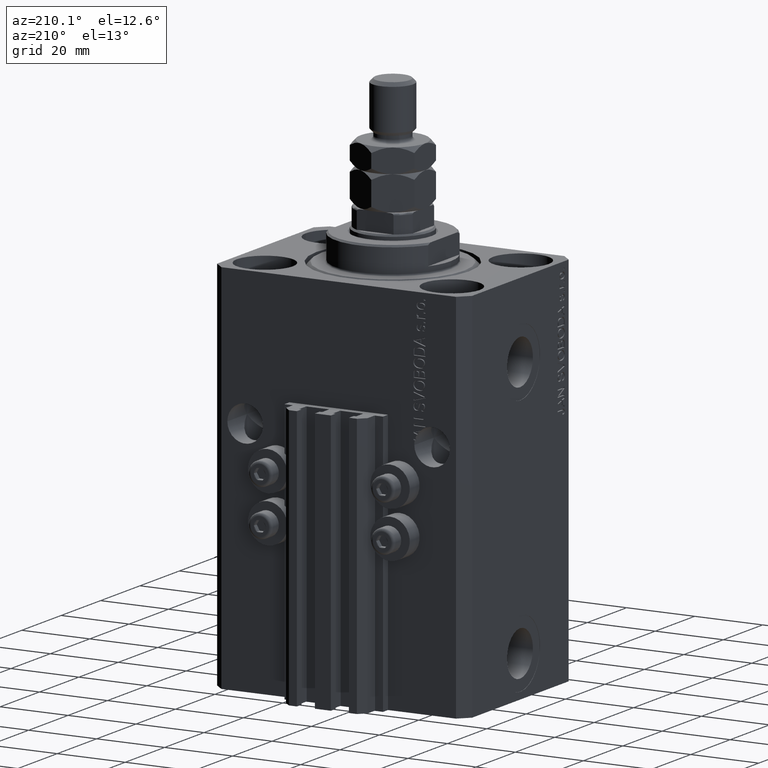
[diagram: clean part render]
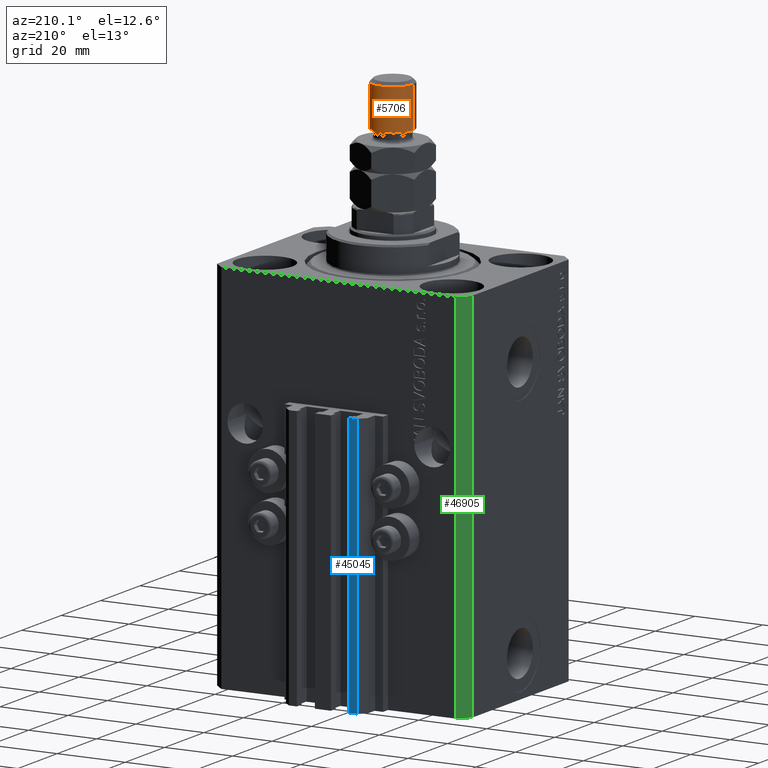
[diagram: same view with three faces highlighted in distinct colors, each labeled with its STEP entity id]
A machine part, auxiliary view with three faces highlighted in distinct colors.
Their STEP definitions:

[orange] entity #5706 — the highlighted cylindrical surface (edge-blend (fillet) strip) has radius 6 mm, axis along (-0, -0, -1).
#2334 = EDGE_CURVE ( 'NONE', #10616, #20076, #2963, .T. ) ;
#2963 = CIRCLE ( 'NONE', #47497, 6.000000000000000888 ) ;
#3292 = EDGE_CURVE ( 'NONE', #20076, #30026, #20012, .T. ) ;
#4273 = DIRECTION ( 'NONE',  ( -0.000000000000000000, -0.000000000000000000, -1.000000000000000000 ) ) ;
#5706 = ADVANCED_FACE ( 'NONE', ( #10175 ), #13105, .T. ) ;
#6201 = AXIS2_PLACEMENT_3D ( 'NONE', #46379, #20696, #16764 ) ;
#8218 = VECTOR ( 'NONE', #4273, 1000.000000000000000 ) ;
#10175 = FACE_OUTER_BOUND ( 'NONE', #16230, .T. ) ;
#10616 = VERTEX_POINT ( 'NONE', #44525 ) ;
#12099 = CARTESIAN_POINT ( 'NONE',  ( -6.000000000000000888, 0.000000000000000000, 33.00000000000000000 ) ) ;
#13105 = CYLINDRICAL_SURFACE ( 'NONE', #6201, 6.000000000000000888 ) ;
#13154 = VECTOR ( 'NONE', #31252, 1000.000000000000000 ) ;
#16230 = EDGE_LOOP ( 'NONE', ( #38208, #41145, #33505, #39753 ) ) ;
#16764 = DIRECTION ( 'NONE',  ( -1.000000000000000000, 0.000000000000000000, 0.000000000000000000 ) ) ;
#17545 = AXIS2_PLACEMENT_3D ( 'NONE', #34773, #45555, #38915 ) ;
#18337 = CIRCLE ( 'NONE', #17545, 6.000000000000000888 ) ;
#20012 = LINE ( 'NONE', #23667, #13154 ) ;
#20076 = VERTEX_POINT ( 'NONE', #23180 ) ;
#20133 = VERTEX_POINT ( 'NONE', #21933 ) ;
#20696 = DIRECTION ( 'NONE',  ( -0.000000000000000000, -0.000000000000000000, -1.000000000000000000 ) ) ;
#21933 = CARTESIAN_POINT ( 'NONE',  ( -6.000000000000000888, 0.000000000000000000, 20.00000000000000711 ) ) ;
#23180 = CARTESIAN_POINT ( 'NONE',  ( 6.000000000000000888, 7.347880794884120722E-16, 32.00000000000000000 ) ) ;
#23667 = CARTESIAN_POINT ( 'NONE',  ( 6.000000000000000888, 7.347880794884120722E-16, 33.00000000000000000 ) ) ;
#26747 = EDGE_CURVE ( 'NONE', #30026, #20133, #18337, .T. ) ;
#27008 = LINE ( 'NONE', #12099, #8218 ) ;
#27557 = EDGE_CURVE ( 'NONE', #10616, #20133, #27008, .T. ) ;
#28850 = DIRECTION ( 'NONE',  ( 1.000000000000000000, 0.000000000000000000, 0.000000000000000000 ) ) ;
#30026 = VERTEX_POINT ( 'NONE', #31700 ) ;
#31252 = DIRECTION ( 'NONE',  ( -0.000000000000000000, -0.000000000000000000, -1.000000000000000000 ) ) ;
#31700 = CARTESIAN_POINT ( 'NONE',  ( 6.000000000000000888, 7.347880794884120722E-16, 20.00000000000000711 ) ) ;
#33505 = ORIENTED_EDGE ( 'NONE', *, *, #26747, .T. ) ;
#34773 = CARTESIAN_POINT ( 'NONE',  ( 0.000000000000000000, 0.000000000000000000, 20.00000000000000711 ) ) ;
#38208 = ORIENTED_EDGE ( 'NONE', *, *, #2334, .T. ) ;
#38915 = DIRECTION ( 'NONE',  ( 1.000000000000000000, 0.000000000000000000, 0.000000000000000000 ) ) ;
#39753 = ORIENTED_EDGE ( 'NONE', *, *, #27557, .F. ) ;
#41145 = ORIENTED_EDGE ( 'NONE', *, *, #3292, .T. ) ;
#43278 = CARTESIAN_POINT ( 'NONE',  ( 0.000000000000000000, 0.000000000000000000, 32.00000000000000000 ) ) ;
#43776 = DIRECTION ( 'NONE',  ( 0.000000000000000000, 0.000000000000000000, -1.000000000000000000 ) ) ;
#44525 = CARTESIAN_POINT ( 'NONE',  ( -6.000000000000000888, 0.000000000000000000, 32.00000000000000000 ) ) ;
#45555 = DIRECTION ( 'NONE',  ( -0.000000000000000000, -0.000000000000000000, 1.000000000000000000 ) ) ;
#46379 = CARTESIAN_POINT ( 'NONE',  ( 0.000000000000000000, 0.000000000000000000, 33.00000000000000000 ) ) ;
#47497 = AXIS2_PLACEMENT_3D ( 'NONE', #43278, #43776, #28850 ) ;

[blue] entity #45045 — the highlighted planar face has unit normal (0, 1, 0).
#2706 = ORIENTED_EDGE ( 'NONE', *, *, #21176, .T. ) ;
#4107 = DIRECTION ( 'NONE',  ( 0.000000000000000000, 0.000000000000000000, 1.000000000000000000 ) ) ;
#4294 = CARTESIAN_POINT ( 'NONE',  ( -10.00000000000000000, 35.50000000000000000, -110.0000000000000000 ) ) ;
#4727 = VECTOR ( 'NONE', #28028, 1000.000000000000000 ) ;
#6081 = DIRECTION ( 'NONE',  ( -1.000000000000000000, 0.000000000000000000, 0.000000000000000000 ) ) ;
#6573 = CARTESIAN_POINT ( 'NONE',  ( -7.650000000000000355, 35.50000000000000000, -110.0000000000000000 ) ) ;
#7255 = DIRECTION ( 'NONE',  ( 0.000000000000000000, 0.000000000000000000, 1.000000000000000000 ) ) ;
#8017 = EDGE_CURVE ( 'NONE', #18104, #37596, #39025, .T. ) ;
#10486 = VECTOR ( 'NONE', #7255, 1000.000000000000000 ) ;
#10593 = CARTESIAN_POINT ( 'NONE',  ( -7.650000000000000355, 35.50000000000000000, -33.00000000000000000 ) ) ;
#11325 = CARTESIAN_POINT ( 'NONE',  ( -10.00000000000000000, 35.50000000000000000, -110.0000000000000000 ) ) ;
#12641 = CARTESIAN_POINT ( 'NONE',  ( -7.650000000000000355, 35.50000000000000000, -110.0000000000000000 ) ) ;
#14888 = PLANE ( 'NONE',  #34805 ) ;
#15935 = ORIENTED_EDGE ( 'NONE', *, *, #28113, .F. ) ;
#17634 = CARTESIAN_POINT ( 'NONE',  ( -10.00000000000000000, 35.50000000000000000, -33.00000000000000000 ) ) ;
#18104 = VERTEX_POINT ( 'NONE', #27194 ) ;
#18158 = VERTEX_POINT ( 'NONE', #17634 ) ;
#18621 = LINE ( 'NONE', #45268, #40241 ) ;
#19215 = VECTOR ( 'NONE', #6081, 1000.000000000000000 ) ;
#21176 = EDGE_CURVE ( 'NONE', #43510, #18158, #33425, .T. ) ;
#21846 = ORIENTED_EDGE ( 'NONE', *, *, #8017, .F. ) ;
#22707 = DIRECTION ( 'NONE',  ( 0.000000000000000000, 1.000000000000000000, -0.000000000000000000 ) ) ;
#26896 = EDGE_LOOP ( 'NONE', ( #15935, #21846, #31122, #2706 ) ) ;
#27194 = CARTESIAN_POINT ( 'NONE',  ( -7.650000000000000355, 35.50000000000000000, -110.0000000000000000 ) ) ;
#28028 = DIRECTION ( 'NONE',  ( 0.000000000000000000, 0.000000000000000000, 1.000000000000000000 ) ) ;
#28113 = EDGE_CURVE ( 'NONE', #37596, #18158, #18621, .T. ) ;
#31122 = ORIENTED_EDGE ( 'NONE', *, *, #44995, .T. ) ;
#32988 = LINE ( 'NONE', #6573, #19215 ) ;
#33425 = LINE ( 'NONE', #4294, #10486 ) ;
#34805 = AXIS2_PLACEMENT_3D ( 'NONE', #44496, #22707, #4107 ) ;
#37596 = VERTEX_POINT ( 'NONE', #10593 ) ;
#37910 = DIRECTION ( 'NONE',  ( -1.000000000000000000, 0.000000000000000000, 0.000000000000000000 ) ) ;
#38083 = FACE_OUTER_BOUND ( 'NONE', #26896, .T. ) ;
#39025 = LINE ( 'NONE', #12641, #4727 ) ;
#40241 = VECTOR ( 'NONE', #37910, 1000.000000000000000 ) ;
#43510 = VERTEX_POINT ( 'NONE', #11325 ) ;
#44496 = CARTESIAN_POINT ( 'NONE',  ( -7.650000000000000355, 35.50000000000000000, -110.0000000000000000 ) ) ;
#44995 = EDGE_CURVE ( 'NONE', #18104, #43510, #32988, .T. ) ;
#45045 = ADVANCED_FACE ( 'NONE', ( #38083 ), #14888, .T. ) ;
#45268 = CARTESIAN_POINT ( 'NONE',  ( -7.650000000000000355, 35.50000000000000000, -33.00000000000000000 ) ) ;

[green] entity #46905 — the highlighted planar face has unit normal (-0.7071, 0.7071, 0).
#876 = ORIENTED_EDGE ( 'NONE', *, *, #23065, .T. ) ;
#1100 = VECTOR ( 'NONE', #36726, 1000.000000000000000 ) ;
#3170 = VERTEX_POINT ( 'NONE', #35447 ) ;
#3461 = LINE ( 'NONE', #45044, #37243 ) ;
#4586 = ORIENTED_EDGE ( 'NONE', *, *, #31542, .F. ) ;
#6582 = ORIENTED_EDGE ( 'NONE', *, *, #41429, .F. ) ;
#7155 = CARTESIAN_POINT ( 'NONE',  ( -34.49999999999999289, 27.50000000000000000, -110.0000000000000000 ) ) ;
#8191 = CARTESIAN_POINT ( 'NONE',  ( -34.49999999999999289, 27.50000000000000000, -110.0000000000000000 ) ) ;
#10959 = VERTEX_POINT ( 'NONE', #25623 ) ;
#12335 = VERTEX_POINT ( 'NONE', #43123 ) ;
#12546 = CARTESIAN_POINT ( 'NONE',  ( -34.49999999999999289, 27.50000000000000000, -110.0000000000000000 ) ) ;
#15439 = CARTESIAN_POINT ( 'NONE',  ( -37.49999999999999289, 24.50000000000000000, -110.0000000000000000 ) ) ;
#15787 = LINE ( 'NONE', #45395, #45628 ) ;
#16445 = DIRECTION ( 'NONE',  ( 0.000000000000000000, 0.000000000000000000, 1.000000000000000000 ) ) ;
#18386 = DIRECTION ( 'NONE',  ( -0.7071067811865471286, -0.7071067811865479058, 0.000000000000000000 ) ) ;
#18587 = VERTEX_POINT ( 'NONE', #8191 ) ;
#22546 = LINE ( 'NONE', #15439, #1100 ) ;
#22881 = EDGE_CURVE ( 'NONE', #18587, #3170, #15787, .T. ) ;
#23065 = EDGE_CURVE ( 'NONE', #3170, #12335, #22546, .T. ) ;
#24657 = EDGE_LOOP ( 'NONE', ( #4586, #6582, #39017, #876 ) ) ;
#25294 = VECTOR ( 'NONE', #16445, 1000.000000000000000 ) ;
#25623 = CARTESIAN_POINT ( 'NONE',  ( -34.49999999999999289, 27.50000000000000000, 0.000000000000000000 ) ) ;
#25746 = FACE_OUTER_BOUND ( 'NONE', #24657, .T. ) ;
#31542 = EDGE_CURVE ( 'NONE', #10959, #12335, #3461, .T. ) ;
#31844 = LINE ( 'NONE', #12546, #25294 ) ;
#33318 = DIRECTION ( 'NONE',  ( -0.7071067811865479058, 0.7071067811865471286, 0.000000000000000000 ) ) ;
#33319 = AXIS2_PLACEMENT_3D ( 'NONE', #7155, #33318, #48262 ) ;
#35447 = CARTESIAN_POINT ( 'NONE',  ( -37.49999999999999289, 24.50000000000000000, -110.0000000000000000 ) ) ;
#36726 = DIRECTION ( 'NONE',  ( 0.000000000000000000, 0.000000000000000000, 1.000000000000000000 ) ) ;
#37243 = VECTOR ( 'NONE', #18386, 1000.000000000000000 ) ;
#39017 = ORIENTED_EDGE ( 'NONE', *, *, #22881, .T. ) ;
#40656 = PLANE ( 'NONE',  #33319 ) ;
#41429 = EDGE_CURVE ( 'NONE', #18587, #10959, #31844, .T. ) ;
#42191 = DIRECTION ( 'NONE',  ( -0.7071067811865471286, -0.7071067811865479058, 0.000000000000000000 ) ) ;
#43123 = CARTESIAN_POINT ( 'NONE',  ( -37.49999999999999289, 24.50000000000000000, 0.000000000000000000 ) ) ;
#45044 = CARTESIAN_POINT ( 'NONE',  ( -34.49999999999999289, 27.50000000000000000, 0.000000000000000000 ) ) ;
#45395 = CARTESIAN_POINT ( 'NONE',  ( -34.49999999999999289, 27.50000000000000000, -110.0000000000000000 ) ) ;
#45628 = VECTOR ( 'NONE', #42191, 1000.000000000000000 ) ;
#46905 = ADVANCED_FACE ( 'NONE', ( #25746 ), #40656, .T. ) ;
#48262 = DIRECTION ( 'NONE',  ( -0.7071067811865471286, -0.7071067811865479058, 0.000000000000000000 ) ) ;